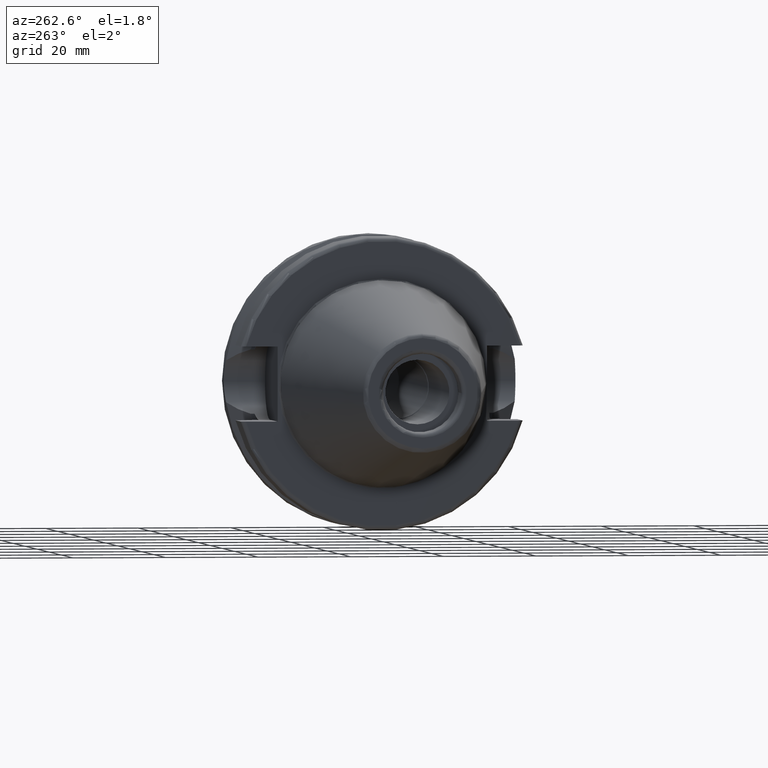
[diagram: clean part render]
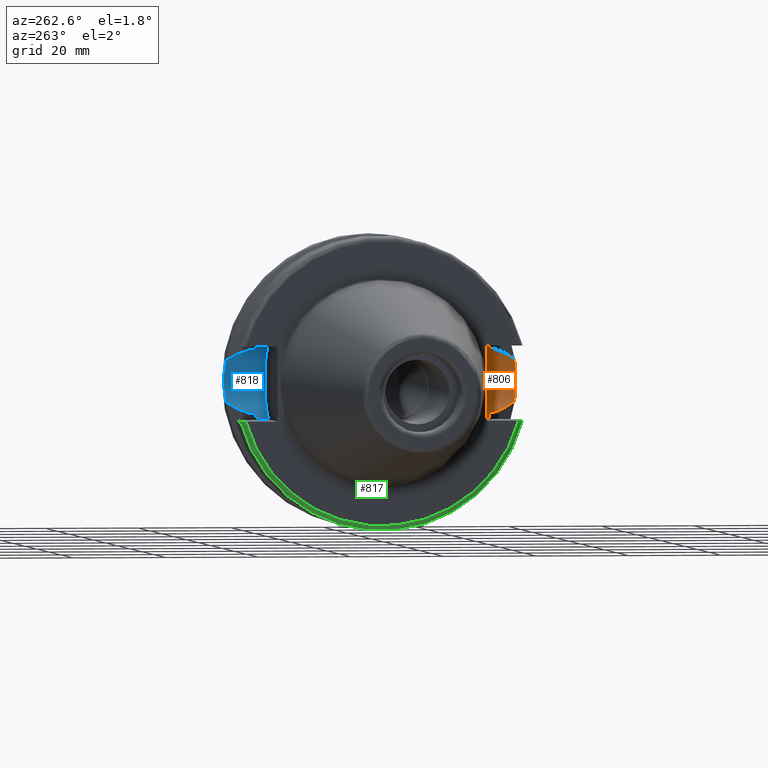
[diagram: same view with three faces highlighted in distinct colors, each labeled with its STEP entity id]
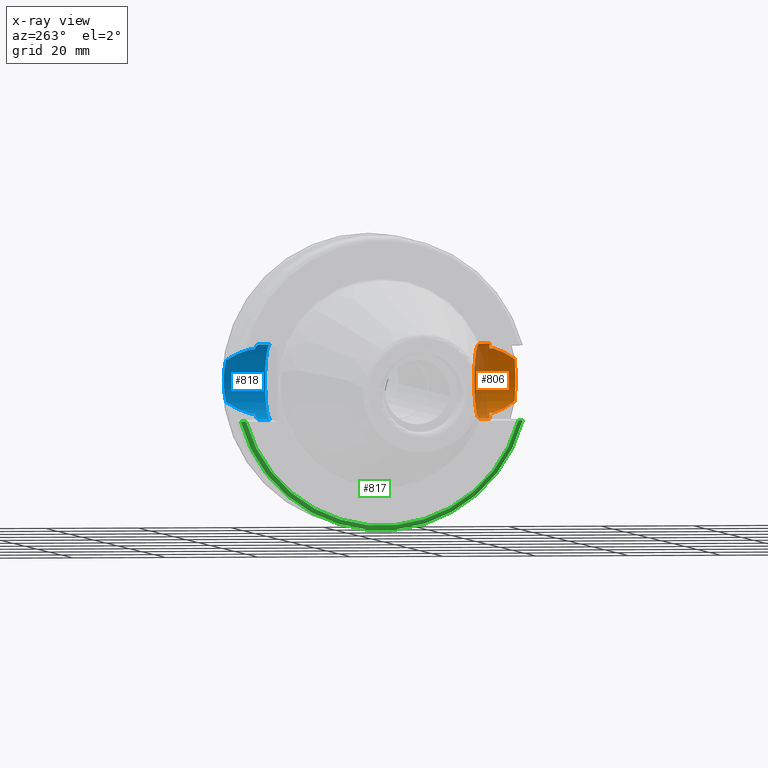
[diagram: x-ray of the same camera — body ghosted, the three highlighted faces saturated]
A machine part, auxiliary view with three faces highlighted in distinct colors.
The next image is the same camera in x-ray (body ghosted, the three faces saturated) — at least one of them is partly hidden behind the body in this view.
Their STEP definitions:

[orange] entity #806 — the highlighted cylindrical surface (partial cylindrical patch) has radius 8.05 mm, axis along (0, 1, 0).
#75=CIRCLE('',#894,8.05);
#118=CYLINDRICAL_SURFACE('',#893,8.05);
#141=FACE_OUTER_BOUND('',#194,.T.);
#194=EDGE_LOOP('',(#602,#603,#604,#605,#606,#607,#608,#609,#610,#611,#612));
#237=B_SPLINE_CURVE_WITH_KNOTS('',3,(#1466,#1467,#1468,#1469,#1470,#1471),
 .UNSPECIFIED.,.F.,.F.,(4,2,4),(2.02427460070182,2.13747311195296,2.44288295924093),
 .UNSPECIFIED.);
#238=B_SPLINE_CURVE_WITH_KNOTS('',3,(#1475,#1476,#1477,#1478,#1479,#1480),
 .UNSPECIFIED.,.F.,.F.,(4,2,4),(3.12975744792551,3.6269928875698,3.7084873746139),
 .UNSPECIFIED.);
#239=B_SPLINE_CURVE_WITH_KNOTS('',3,(#1482,#1483,#1484,#1485,#1486,#1487),
 .UNSPECIFIED.,.F.,.F.,(4,2,4),(1.21877751840372,1.52344857393281,1.67526011710938),
 .UNSPECIFIED.);
#240=B_SPLINE_CURVE_WITH_KNOTS('',3,(#1489,#1490,#1491,#1492,#1493,#1494),
 .UNSPECIFIED.,.F.,.F.,(4,2,4),(0.762294919698049,0.914106462874623,1.21877751840372),
 .UNSPECIFIED.);
#241=B_SPLINE_CURVE_WITH_KNOTS('',3,(#1496,#1497,#1498,#1499,#1500,#1501),
 .UNSPECIFIED.,.F.,.F.,(4,2,4),(1.46421027899563,1.54570476603974,2.04294020568402),
 .UNSPECIFIED.);
#242=B_SPLINE_CURVE_WITH_KNOTS('',3,(#1505,#1506,#1507,#1508,#1509,#1510),
 .UNSPECIFIED.,.F.,.F.,(4,2,4),(0.,0.305409847287967,0.418608358539112),
 .UNSPECIFIED.);
#261=LINE('',#1473,#307);
#262=LINE('',#1503,#308);
#263=LINE('',#1512,#309);
#264=LINE('',#1515,#310);
#307=VECTOR('',#1036,10.);
#308=VECTOR('',#1037,10.);
#309=VECTOR('',#1038,10.);
#310=VECTOR('',#1041,10.);
#362=VERTEX_POINT('',#1464);
#363=VERTEX_POINT('',#1465);
#364=VERTEX_POINT('',#1472);
#365=VERTEX_POINT('',#1474);
#366=VERTEX_POINT('',#1481);
#367=VERTEX_POINT('',#1488);
#368=VERTEX_POINT('',#1495);
#369=VERTEX_POINT('',#1502);
#370=VERTEX_POINT('',#1504);
#371=VERTEX_POINT('',#1511);
#372=VERTEX_POINT('',#1513);
#452=EDGE_CURVE('',#362,#363,#237,.T.);
#453=EDGE_CURVE('',#364,#362,#261,.T.);
#454=EDGE_CURVE('',#365,#364,#238,.T.);
#455=EDGE_CURVE('',#366,#365,#239,.T.);
#456=EDGE_CURVE('',#367,#366,#240,.T.);
#457=EDGE_CURVE('',#368,#367,#241,.T.);
#458=EDGE_CURVE('',#369,#368,#262,.T.);
#459=EDGE_CURVE('',#370,#369,#242,.T.);
#460=EDGE_CURVE('',#371,#370,#263,.T.);
#461=EDGE_CURVE('',#371,#372,#75,.T.);
#462=EDGE_CURVE('',#372,#363,#264,.T.);
#602=ORIENTED_EDGE('',*,*,#452,.F.);
#603=ORIENTED_EDGE('',*,*,#453,.F.);
#604=ORIENTED_EDGE('',*,*,#454,.F.);
#605=ORIENTED_EDGE('',*,*,#455,.F.);
#606=ORIENTED_EDGE('',*,*,#456,.F.);
#607=ORIENTED_EDGE('',*,*,#457,.F.);
#608=ORIENTED_EDGE('',*,*,#458,.F.);
#609=ORIENTED_EDGE('',*,*,#459,.F.);
#610=ORIENTED_EDGE('',*,*,#460,.F.);
#611=ORIENTED_EDGE('',*,*,#461,.T.);
#612=ORIENTED_EDGE('',*,*,#462,.T.);
#806=ADVANCED_FACE('',(#141),#118,.F.);
#893=AXIS2_PLACEMENT_3D('',#1463,#1034,#1035);
#894=AXIS2_PLACEMENT_3D('',#1514,#1039,#1040);
#1034=DIRECTION('center_axis',(0.,1.,0.));
#1035=DIRECTION('ref_axis',(0.,0.,1.));
#1036=DIRECTION('',(0.,1.,0.));
#1037=DIRECTION('',(0.,-1.,0.));
#1038=DIRECTION('',(0.,-1.,0.));
#1039=DIRECTION('center_axis',(0.,1.,0.));
#1040=DIRECTION('ref_axis',(0.,0.,1.));
#1041=DIRECTION('',(0.,-1.,0.));
#1463=CARTESIAN_POINT('Origin',(14.95,-22.6,0.));
#1464=CARTESIAN_POINT('',(19.1,-25.3793222919762,-6.89782574439221));
#1465=CARTESIAN_POINT('',(14.95,-25.0377215417058,-8.05));
#1466=CARTESIAN_POINT('Ctrl Pts',(19.1,-25.3793222919762,-6.89782574439221));
#1467=CARTESIAN_POINT('Ctrl Pts',(18.7623374744972,-25.3241080721198,-7.10097664045187));
#1468=CARTESIAN_POINT('Ctrl Pts',(18.4068260684762,-25.2726009715968,-7.28086186600679));
#1469=CARTESIAN_POINT('Ctrl Pts',(17.0490724969254,-25.1063150193149,-7.84520188991776));
#1470=CARTESIAN_POINT('Ctrl Pts',(15.9680328242932,-25.0377215417058,-8.05));
#1471=CARTESIAN_POINT('Ctrl Pts',(14.95,-25.0377215417058,-8.05));
#1472=CARTESIAN_POINT('',(19.1,-26.201311395455,-6.89782574439221));
#1473=CARTESIAN_POINT('',(19.1,-22.6,-6.89782574439221));
#1474=CARTESIAN_POINT('',(21.6309636926618,-31.1782420264945,-4.49079326370462));
#1475=CARTESIAN_POINT('Ctrl Pts',(21.6309636926618,-31.1782420264945,-4.49079326370461));
#1476=CARTESIAN_POINT('Ctrl Pts',(20.9728756148302,-29.8797957262939,-5.46983244373119));
#1477=CARTESIAN_POINT('Ctrl Pts',(20.1784155384866,-28.3157123387483,-6.1823136897693));
#1478=CARTESIAN_POINT('Ctrl Pts',(19.3406963650696,-26.6728819297427,-6.74867108656043));
#1479=CARTESIAN_POINT('Ctrl Pts',(19.2210929544554,-26.438473693351,-6.82497151762397));
#1480=CARTESIAN_POINT('Ctrl Pts',(19.1,-26.201311395455,-6.89782574439222));
#1481=CARTESIAN_POINT('',(23.,-31.5,-2.34515234289152E-15));
#1482=CARTESIAN_POINT('Ctrl Pts',(23.,-31.5,-1.11022302462516E-15));
#1483=CARTESIAN_POINT('Ctrl Pts',(23.,-31.5,-1.01557018509698));
#1484=CARTESIAN_POINT('Ctrl Pts',(22.7961189876535,-31.445974204441,-2.09580170425552));
#1485=CARTESIAN_POINT('Ctrl Pts',(22.1796133812044,-31.2997625705024,-3.5806535819887));
#1486=CARTESIAN_POINT('Ctrl Pts',(21.92482980253,-31.2412125047166,-4.05360796141052));
#1487=CARTESIAN_POINT('Ctrl Pts',(21.6309636926618,-31.1782420264945,-4.49079326370462));
#1488=CARTESIAN_POINT('',(21.6309636926618,-31.1782420264945,4.49079326370462));
#1489=CARTESIAN_POINT('Ctrl Pts',(21.6309636926618,-31.1782420264945,4.49079326370462));
#1490=CARTESIAN_POINT('Ctrl Pts',(21.92482980253,-31.2412125047166,4.05360796141052));
#1491=CARTESIAN_POINT('Ctrl Pts',(22.1796133812044,-31.2997625705024,3.5806535819887));
#1492=CARTESIAN_POINT('Ctrl Pts',(22.7961189876535,-31.445974204441,2.09580170425552));
#1493=CARTESIAN_POINT('Ctrl Pts',(23.,-31.5,1.01557018509698));
#1494=CARTESIAN_POINT('Ctrl Pts',(23.,-31.5,-1.11022302462516E-15));
#1495=CARTESIAN_POINT('',(19.1,-26.201311395455,6.89782574439221));
#1496=CARTESIAN_POINT('Ctrl Pts',(19.1,-26.201311395455,6.89782574439221));
#1497=CARTESIAN_POINT('Ctrl Pts',(19.2210929544554,-26.438473693351,6.82497151762397));
#1498=CARTESIAN_POINT('Ctrl Pts',(19.3406963650696,-26.6728819297427,6.74867108656043));
#1499=CARTESIAN_POINT('Ctrl Pts',(20.1784155384866,-28.3157123387483,6.1823136897693));
#1500=CARTESIAN_POINT('Ctrl Pts',(20.9728756148302,-29.8797957262938,5.46983244373119));
#1501=CARTESIAN_POINT('Ctrl Pts',(21.6309636926618,-31.1782420264945,4.49079326370462));
#1502=CARTESIAN_POINT('',(19.1,-25.3793222919762,6.89782574439221));
#1503=CARTESIAN_POINT('',(19.1,-22.6,6.89782574439221));
#1504=CARTESIAN_POINT('',(14.95,-25.0377215417058,8.05));
#1505=CARTESIAN_POINT('Ctrl Pts',(14.95,-25.0377215417058,8.05));
#1506=CARTESIAN_POINT('Ctrl Pts',(15.9680328242932,-25.0377215417058,8.05));
#1507=CARTESIAN_POINT('Ctrl Pts',(17.0490724969254,-25.1063150193149,7.84520188991776));
#1508=CARTESIAN_POINT('Ctrl Pts',(18.4068260684762,-25.2726009715968,7.28086186600679));
#1509=CARTESIAN_POINT('Ctrl Pts',(18.7623374744972,-25.3241080721198,7.10097664045187));
#1510=CARTESIAN_POINT('Ctrl Pts',(19.1,-25.3793222919762,6.89782574439221));
#1511=CARTESIAN_POINT('',(14.95,-22.6,8.05));
#1512=CARTESIAN_POINT('',(14.95,-22.6,8.05));
#1513=CARTESIAN_POINT('',(14.95,-22.6,-8.05));
#1514=CARTESIAN_POINT('Origin',(14.95,-22.6,0.));
#1515=CARTESIAN_POINT('',(14.95,-22.6,-8.05));

[blue] entity #818 — the highlighted cylindrical surface (partial cylindrical patch) has radius 8.05 mm, axis along (0, 1, 0).
#87=CIRCLE('',#918,8.05);
#122=CYLINDRICAL_SURFACE('',#917,8.05);
#153=FACE_OUTER_BOUND('',#206,.T.);
#206=EDGE_LOOP('',(#672,#673,#674,#675,#676,#677,#678,#679,#680,#681));
#245=B_SPLINE_CURVE_WITH_KNOTS('',3,(#1576,#1577,#1578,#1579,#1580,#1581,
#1582,#1583,#1584,#1585),.UNSPECIFIED.,.F.,.F.,(4,2,2,2,4),(3.19984995650548,
3.35166149968205,3.65633255521115,3.96100361074024,4.11281515391681),
 .UNSPECIFIED.);
#246=B_SPLINE_CURVE_WITH_KNOTS('',3,(#1591,#1592,#1593,#1594,#1595,#1596),
 .UNSPECIFIED.,.F.,.F.,(4,2,4),(1.46421027899563,1.54570476603974,2.04294020568402),
 .UNSPECIFIED.);
#247=B_SPLINE_CURVE_WITH_KNOTS('',3,(#1606,#1607,#1608,#1609,#1610,#1611),
 .UNSPECIFIED.,.F.,.F.,(4,2,4),(2.44288295924093,2.7482928065289,2.86149131778004),
 .UNSPECIFIED.);
#249=B_SPLINE_CURVE_WITH_KNOTS('',3,(#1647,#1648,#1649,#1650,#1651,#1652),
 .UNSPECIFIED.,.F.,.F.,(4,2,4),(-0.418608358539113,-0.305409847287967,0.),
 .UNSPECIFIED.);
#250=B_SPLINE_CURVE_WITH_KNOTS('',3,(#1655,#1656,#1657,#1658,#1659,#1660),
 .UNSPECIFIED.,.F.,.F.,(4,2,4),(3.12975744792551,3.6269928875698,3.7084873746139),
 .UNSPECIFIED.);
#277=LINE('',#1600,#323);
#281=LINE('',#1641,#327);
#282=LINE('',#1645,#328);
#283=LINE('',#1654,#329);
#323=VECTOR('',#1078,10.);
#327=VECTOR('',#1104,10.);
#328=VECTOR('',#1107,10.);
#329=VECTOR('',#1108,10.);
#387=VERTEX_POINT('',#1573);
#388=VERTEX_POINT('',#1575);
#389=VERTEX_POINT('',#1589);
#390=VERTEX_POINT('',#1598);
#392=VERTEX_POINT('',#1604);
#397=VERTEX_POINT('',#1640);
#398=VERTEX_POINT('',#1642);
#399=VERTEX_POINT('',#1644);
#400=VERTEX_POINT('',#1646);
#401=VERTEX_POINT('',#1653);
#481=EDGE_CURVE('',#387,#388,#245,.T.);
#485=EDGE_CURVE('',#389,#387,#246,.T.);
#487=EDGE_CURVE('',#390,#389,#277,.T.);
#490=EDGE_CURVE('',#392,#390,#247,.T.);
#499=EDGE_CURVE('',#397,#392,#281,.T.);
#500=EDGE_CURVE('',#398,#397,#87,.T.);
#501=EDGE_CURVE('',#398,#399,#282,.T.);
#502=EDGE_CURVE('',#400,#399,#249,.T.);
#503=EDGE_CURVE('',#401,#400,#283,.T.);
#504=EDGE_CURVE('',#388,#401,#250,.T.);
#672=ORIENTED_EDGE('',*,*,#490,.F.);
#673=ORIENTED_EDGE('',*,*,#499,.F.);
#674=ORIENTED_EDGE('',*,*,#500,.F.);
#675=ORIENTED_EDGE('',*,*,#501,.T.);
#676=ORIENTED_EDGE('',*,*,#502,.F.);
#677=ORIENTED_EDGE('',*,*,#503,.F.);
#678=ORIENTED_EDGE('',*,*,#504,.F.);
#679=ORIENTED_EDGE('',*,*,#481,.F.);
#680=ORIENTED_EDGE('',*,*,#485,.F.);
#681=ORIENTED_EDGE('',*,*,#487,.F.);
#818=ADVANCED_FACE('',(#153),#122,.F.);
#917=AXIS2_PLACEMENT_3D('',#1639,#1102,#1103);
#918=AXIS2_PLACEMENT_3D('',#1643,#1105,#1106);
#1078=DIRECTION('',(0.,1.,0.));
#1102=DIRECTION('center_axis',(0.,1.,0.));
#1103=DIRECTION('ref_axis',(0.,0.,1.));
#1104=DIRECTION('',(0.,1.,0.));
#1105=DIRECTION('center_axis',(0.,1.,0.));
#1106=DIRECTION('ref_axis',(0.,0.,1.));
#1107=DIRECTION('',(0.,1.,0.));
#1108=DIRECTION('',(0.,-1.,0.));
#1573=CARTESIAN_POINT('',(21.6309636926618,31.1782420264945,-4.49079326370462));
#1575=CARTESIAN_POINT('',(21.6309636926618,31.1782420264945,4.49079326370462));
#1576=CARTESIAN_POINT('Ctrl Pts',(21.6309636926618,31.1782420264945,-4.49079326370462));
#1577=CARTESIAN_POINT('Ctrl Pts',(21.92482980253,31.2412125047166,-4.05360796141052));
#1578=CARTESIAN_POINT('Ctrl Pts',(22.1796133812043,31.2997625705024,-3.5806535819887));
#1579=CARTESIAN_POINT('Ctrl Pts',(22.7961189876535,31.445974204441,-2.09580170425552));
#1580=CARTESIAN_POINT('Ctrl Pts',(23.,31.5,-1.01557018509698));
#1581=CARTESIAN_POINT('Ctrl Pts',(23.,31.5,1.01557018509698));
#1582=CARTESIAN_POINT('Ctrl Pts',(22.7961189876535,31.445974204441,2.09580170425552));
#1583=CARTESIAN_POINT('Ctrl Pts',(22.1796133812044,31.2997625705024,3.5806535819887));
#1584=CARTESIAN_POINT('Ctrl Pts',(21.92482980253,31.2412125047166,4.05360796141052));
#1585=CARTESIAN_POINT('Ctrl Pts',(21.6309636926618,31.1782420264945,4.49079326370462));
#1589=CARTESIAN_POINT('',(19.1,26.201311395455,-6.89782574439221));
#1591=CARTESIAN_POINT('Ctrl Pts',(19.1,26.201311395455,-6.89782574439221));
#1592=CARTESIAN_POINT('Ctrl Pts',(19.2210929544554,26.438473693351,-6.82497151762396));
#1593=CARTESIAN_POINT('Ctrl Pts',(19.3406963650696,26.6728819297427,-6.74867108656043));
#1594=CARTESIAN_POINT('Ctrl Pts',(20.1784155384866,28.3157123387483,-6.1823136897693));
#1595=CARTESIAN_POINT('Ctrl Pts',(20.9728756148302,29.8797957262938,-5.46983244373119));
#1596=CARTESIAN_POINT('Ctrl Pts',(21.6309636926618,31.1782420264945,-4.49079326370462));
#1598=CARTESIAN_POINT('',(19.1,25.3793222919762,-6.89782574439221));
#1600=CARTESIAN_POINT('',(19.1,22.6,-6.89782574439221));
#1604=CARTESIAN_POINT('',(14.95,25.0377215417058,-8.05));
#1606=CARTESIAN_POINT('Ctrl Pts',(14.95,25.0377215417058,-8.05));
#1607=CARTESIAN_POINT('Ctrl Pts',(15.9680328242932,25.0377215417058,-8.05));
#1608=CARTESIAN_POINT('Ctrl Pts',(17.0490724969254,25.1063150193149,-7.84520188991776));
#1609=CARTESIAN_POINT('Ctrl Pts',(18.4068260684762,25.2726009715968,-7.28086186600679));
#1610=CARTESIAN_POINT('Ctrl Pts',(18.7623374744972,25.3241080721198,-7.10097664045187));
#1611=CARTESIAN_POINT('Ctrl Pts',(19.1,25.3793222919762,-6.89782574439221));
#1639=CARTESIAN_POINT('Origin',(14.95,22.6,0.));
#1640=CARTESIAN_POINT('',(14.95,22.6,-8.05));
#1641=CARTESIAN_POINT('',(14.95,22.6,-8.05));
#1642=CARTESIAN_POINT('',(14.95,22.6,8.05));
#1643=CARTESIAN_POINT('Origin',(14.95,22.6,0.));
#1644=CARTESIAN_POINT('',(14.95,25.0377215417058,8.05));
#1645=CARTESIAN_POINT('',(14.95,22.6,8.05));
#1646=CARTESIAN_POINT('',(19.1,25.3793222919762,6.89782574439221));
#1647=CARTESIAN_POINT('Ctrl Pts',(19.1,25.3793222919762,6.89782574439221));
#1648=CARTESIAN_POINT('Ctrl Pts',(18.7623374744972,25.3241080721198,7.10097664045187));
#1649=CARTESIAN_POINT('Ctrl Pts',(18.4068260684762,25.2726009715968,7.28086186600679));
#1650=CARTESIAN_POINT('Ctrl Pts',(17.0490724969254,25.1063150193149,7.84520188991776));
#1651=CARTESIAN_POINT('Ctrl Pts',(15.9680328242932,25.0377215417058,8.05));
#1652=CARTESIAN_POINT('Ctrl Pts',(14.95,25.0377215417058,8.05));
#1653=CARTESIAN_POINT('',(19.1,26.201311395455,6.89782574439221));
#1654=CARTESIAN_POINT('',(19.1,22.6,6.89782574439221));
#1655=CARTESIAN_POINT('Ctrl Pts',(21.6309636926618,31.1782420264945,4.49079326370461));
#1656=CARTESIAN_POINT('Ctrl Pts',(20.9728756148302,29.8797957262938,5.46983244373119));
#1657=CARTESIAN_POINT('Ctrl Pts',(20.1784155384866,28.3157123387483,6.1823136897693));
#1658=CARTESIAN_POINT('Ctrl Pts',(19.3406963650696,26.6728819297427,6.74867108656043));
#1659=CARTESIAN_POINT('Ctrl Pts',(19.2210929544554,26.438473693351,6.82497151762397));
#1660=CARTESIAN_POINT('Ctrl Pts',(19.1,26.201311395455,6.89782574439222));

[green] entity #817 — the highlighted toroidal blend (fillet) surface has major radius 30.5 mm and minor (blend) radius 1 mm.
#46=TOROIDAL_SURFACE('',#915,30.5,1.00000000000001);
#85=CIRCLE('',#914,31.5);
#86=CIRCLE('',#916,30.5);
#152=FACE_OUTER_BOUND('',#205,.T.);
#205=EDGE_LOOP('',(#668,#669,#670,#671));
#244=B_SPLINE_CURVE_WITH_KNOTS('',3,(#1549,#1550,#1551,#1552,#1553,#1554,
#1555,#1556,#1557,#1558),.UNSPECIFIED.,.F.,.F.,(4,2,2,2,4),(0.,0.0366169489027566,
0.0738743445372396,0.111946181815504,0.150751871388631),.UNSPECIFIED.);
#248=B_SPLINE_CURVE_WITH_KNOTS('',3,(#1629,#1630,#1631,#1632,#1633,#1634,
#1635,#1636,#1637,#1638),.UNSPECIFIED.,.F.,.F.,(4,2,2,2,4),(-0.150751871388631,
-0.111946181815504,-0.0738743445372396,-0.0366169489027566,0.),
 .UNSPECIFIED.);
#381=VERTEX_POINT('',#1546);
#382=VERTEX_POINT('',#1548);
#395=VERTEX_POINT('',#1623);
#396=VERTEX_POINT('',#1627);
#473=EDGE_CURVE('',#382,#381,#244,.T.);
#495=EDGE_CURVE('',#382,#395,#85,.T.);
#497=EDGE_CURVE('',#381,#396,#86,.T.);
#498=EDGE_CURVE('',#396,#395,#248,.T.);
#668=ORIENTED_EDGE('',*,*,#473,.T.);
#669=ORIENTED_EDGE('',*,*,#497,.T.);
#670=ORIENTED_EDGE('',*,*,#498,.T.);
#671=ORIENTED_EDGE('',*,*,#495,.F.);
#817=ADVANCED_FACE('',(#152),#46,.T.);
#914=AXIS2_PLACEMENT_3D('',#1624,#1095,#1096);
#915=AXIS2_PLACEMENT_3D('',#1626,#1098,#1099);
#916=AXIS2_PLACEMENT_3D('',#1628,#1100,#1101);
#1095=DIRECTION('center_axis',(1.,0.,0.));
#1096=DIRECTION('ref_axis',(0.,0.,-1.));
#1098=DIRECTION('center_axis',(1.,0.,0.));
#1099=DIRECTION('ref_axis',(0.,0.,-1.));
#1100=DIRECTION('center_axis',(1.,0.,0.));
#1101=DIRECTION('ref_axis',(0.,0.,-1.));
#1546=CARTESIAN_POINT('',(1.99999999999999,-29.4184890842477,-8.05));
#1548=CARTESIAN_POINT('',(2.99999999999999,-30.4540227227866,-8.05));
#1549=CARTESIAN_POINT('Ctrl Pts',(3.,-30.4540227227866,-8.05));
#1550=CARTESIAN_POINT('Ctrl Pts',(2.87794350365748,-30.4540227227866,-8.05));
#1551=CARTESIAN_POINT('Ctrl Pts',(2.73442803339431,-30.4247631098996,-8.05));
#1552=CARTESIAN_POINT('Ctrl Pts',(2.50758665841081,-30.3289456947341,-8.05));
#1553=CARTESIAN_POINT('Ctrl Pts',(2.38465986426588,-30.2446912007727,-8.05));
#1554=CARTESIAN_POINT('Ctrl Pts',(2.2089547883793,-30.0653098968133,-8.05));
#1555=CARTESIAN_POINT('Ctrl Pts',(2.12587454939785,-29.9376810968085,-8.05));
#1556=CARTESIAN_POINT('Ctrl Pts',(2.02950258743517,-29.7002346307938,-8.05));
#1557=CARTESIAN_POINT('Ctrl Pts',(1.99999999999999,-29.5478413828248,-8.05));
#1558=CARTESIAN_POINT('Ctrl Pts',(1.99999999999999,-29.4184890842477,-8.05));
#1623=CARTESIAN_POINT('',(2.99999999999999,30.4540227227866,-8.05));
#1624=CARTESIAN_POINT('Origin',(2.99999999999999,0.,0.));
#1626=CARTESIAN_POINT('Origin',(3.,0.,0.));
#1627=CARTESIAN_POINT('',(1.99999999999999,29.4184890842477,-8.05));
#1628=CARTESIAN_POINT('Origin',(1.99999999999999,0.,0.));
#1629=CARTESIAN_POINT('Ctrl Pts',(1.99999999999999,29.4184890842477,-8.05));
#1630=CARTESIAN_POINT('Ctrl Pts',(1.99999999999999,29.5478413828248,-8.05));
#1631=CARTESIAN_POINT('Ctrl Pts',(2.02950258743517,29.7002346307938,-8.05));
#1632=CARTESIAN_POINT('Ctrl Pts',(2.12587454939785,29.9376810968085,-8.05));
#1633=CARTESIAN_POINT('Ctrl Pts',(2.2089547883793,30.0653098968133,-8.05));
#1634=CARTESIAN_POINT('Ctrl Pts',(2.38465986426588,30.2446912007727,-8.05));
#1635=CARTESIAN_POINT('Ctrl Pts',(2.50758665841081,30.3289456947341,-8.05));
#1636=CARTESIAN_POINT('Ctrl Pts',(2.73442803339431,30.4247631098996,-8.05));
#1637=CARTESIAN_POINT('Ctrl Pts',(2.87794350365748,30.4540227227866,-8.05));
#1638=CARTESIAN_POINT('Ctrl Pts',(3.,30.4540227227866,-8.05));